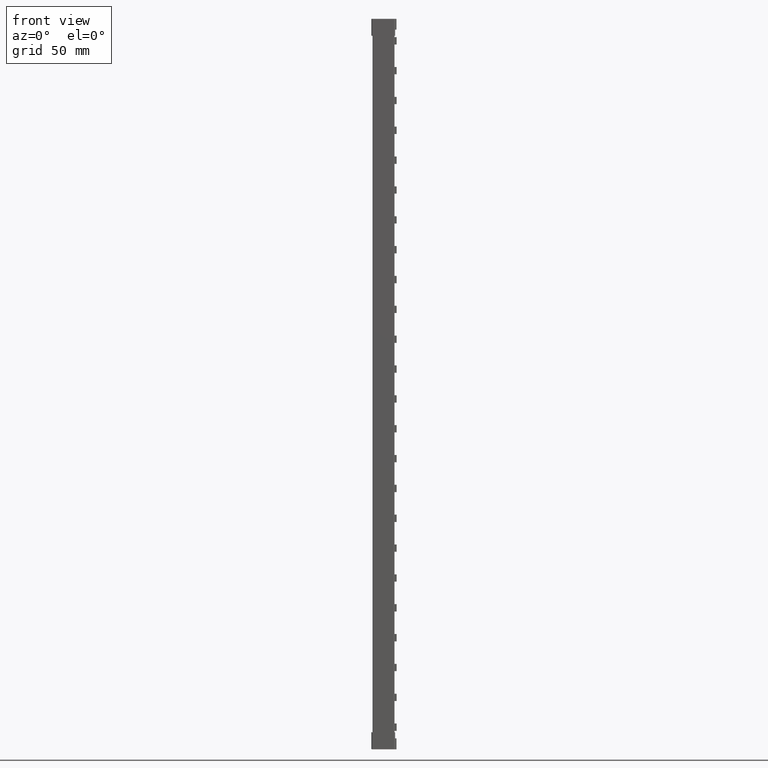
[diagram: clean part render]
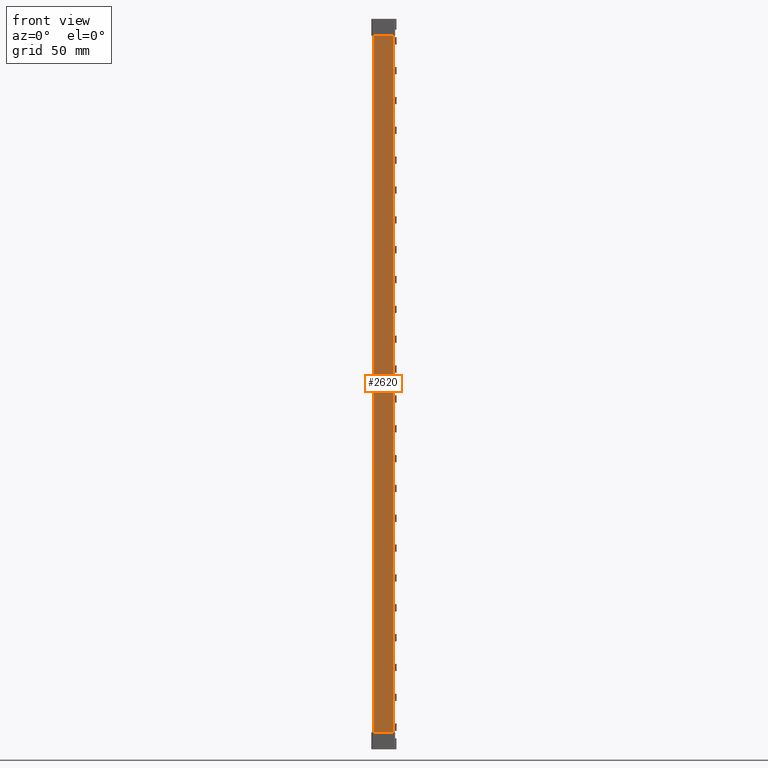
[diagram: same view with one face highlighted and labeled with its STEP entity id]
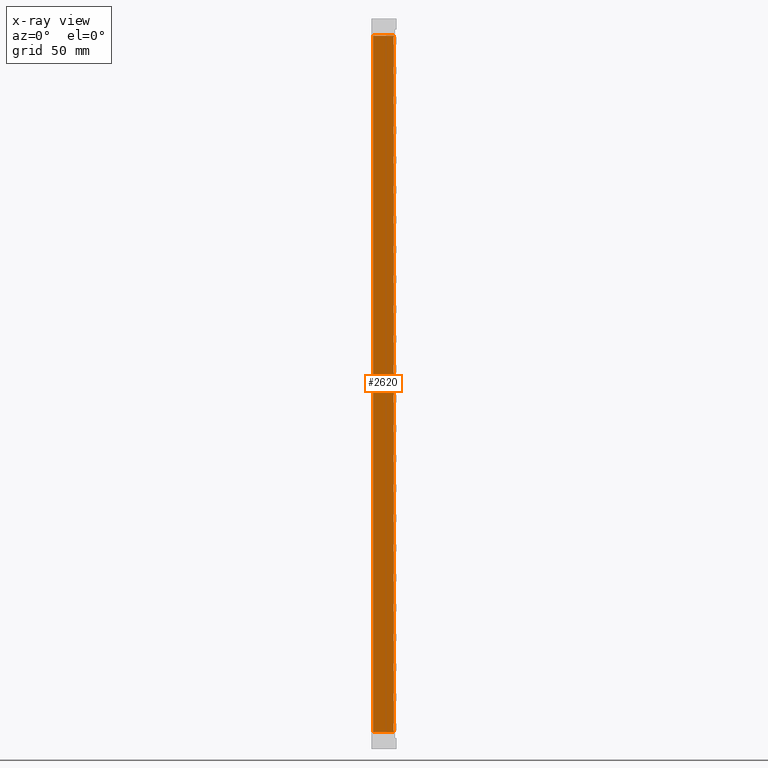
[diagram: x-ray of the same camera — body ghosted, the highlighted face saturated]
A machine part, front view. The second image highlights one B-rep face of the part: STEP entity #2620.
The next image is the same camera in x-ray: the body ghosted, the highlighted face saturated — about 0% of this face is hidden behind the body in this view.
In plain terms, the highlighted planar face has unit normal (-0, 1, 0).
Its self-contained STEP definition (entity closure, byte-faithful):
#1215 = EDGE_LOOP ( 'NONE', ( #12705, #12714, #12861, #12742 ) ) ;
#2620 = ADVANCED_FACE ( 'NONE', ( #27304 ), #27341, .F. ) ;
#3439 = LINE ( 'NONE', #3475, #9444 ) ;
#3457 = DIRECTION ( 'NONE',  ( 0.9999999999999998900, 1.136590436583420100E-008, -3.864550688586627000E-026 ) ) ;
#3475 = CARTESIAN_POINT ( 'NONE',  ( -0.4999997060800690000, -5.682893331100043300E-009, 209.9000000000000100 ) ) ;
#4224 = VECTOR ( 'NONE', #17731, 1000.000000000000000 ) ;
#5479 = EDGE_CURVE ( 'NONE', #26492, #26236, #3439, .T. ) ;
#9444 = VECTOR ( 'NONE', #3457, 1000.000000000000100 ) ;
#12705 = ORIENTED_EDGE ( 'NONE', *, *, #5479, .F. ) ;
#12714 = ORIENTED_EDGE ( 'NONE', *, *, #24431, .T. ) ;
#12742 = ORIENTED_EDGE ( 'NONE', *, *, #12969, .F. ) ;
#12861 = ORIENTED_EDGE ( 'NONE', *, *, #24430, .T. ) ;
#12969 = EDGE_CURVE ( 'NONE', #26236, #25803, #17735, .T. ) ;
#17731 = DIRECTION ( 'NONE',  ( -0.0000000000000000000, -0.0000000000000000000, -1.000000000000000000 ) ) ;
#17735 = LINE ( 'NONE', #17754, #4224 ) ;
#17754 = CARTESIAN_POINT ( 'NONE',  ( 11.80192812978781800, 1.341396419667680700E-007, 219.0000000000000000 ) ) ;
#24430 = EDGE_CURVE ( 'NONE', #25736, #25803, #35847, .T. ) ;
#24431 = EDGE_CURVE ( 'NONE', #26492, #25736, #35855, .T. ) ;
#25736 = VERTEX_POINT ( 'NONE', #28247 ) ;
#25803 = VERTEX_POINT ( 'NONE', #28323 ) ;
#26236 = VERTEX_POINT ( 'NONE', #28730 ) ;
#26492 = VERTEX_POINT ( 'NONE', #28974 ) ;
#27304 = FACE_OUTER_BOUND ( 'NONE', #1215, .T. ) ;
#27305 = CARTESIAN_POINT ( 'NONE',  ( 0.0000000000000000000, 5.551115123125782700E-014, 219.0000000000000000 ) ) ;
#27311 = DIRECTION ( 'NONE',  ( -1.136590436583420300E-008, 1.000000000000000000, 0.0000000000000000000 ) ) ;
#27323 = DIRECTION ( 'NONE',  ( -0.9999999999999998900, -1.136590436583420100E-008, 0.0000000000000000000 ) ) ;
#27341 = PLANE ( 'NONE',  #30287 ) ;
#28247 = CARTESIAN_POINT ( 'NONE',  ( 0.0000000000000000000, 5.725105502598715000E-014, -200.9000000000000100 ) ) ;
#28323 = CARTESIAN_POINT ( 'NONE',  ( 11.80192812978781800, 1.341396452464796400E-007, -200.9000000000000100 ) ) ;
#28730 = CARTESIAN_POINT ( 'NONE',  ( 11.80192812978781800, 1.341396452464796400E-007, 209.9000000000000100 ) ) ;
#28974 = CARTESIAN_POINT ( 'NONE',  ( 0.0000000000000000000, 5.725105502598715000E-014, 209.9000000000000100 ) ) ;
#30287 = AXIS2_PLACEMENT_3D ( 'NONE', #27305, #27311, #27323 ) ;
#35486 = VECTOR ( 'NONE', #35818, 1000.000000000000100 ) ;
#35489 = VECTOR ( 'NONE', #35831, 1000.000000000000000 ) ;
#35818 = DIRECTION ( 'NONE',  ( 0.9999999999999998900, 1.136590449795155200E-008, 3.864550688587075800E-026 ) ) ;
#35831 = DIRECTION ( 'NONE',  ( -0.0000000000000000000, -0.0000000000000000000, -1.000000000000000000 ) ) ;
#35847 = LINE ( 'NONE', #35854, #35486 ) ;
#35854 = CARTESIAN_POINT ( 'NONE',  ( -0.4999997060800690000, -5.682891657254884900E-009, -200.9000000000000100 ) ) ;
#35855 = LINE ( 'NONE', #35864, #35489 ) ;
#35864 = CARTESIAN_POINT ( 'NONE',  ( -9.184850993604136500E-017, 5.551115123125782700E-014, 219.0000000000000000 ) ) ;